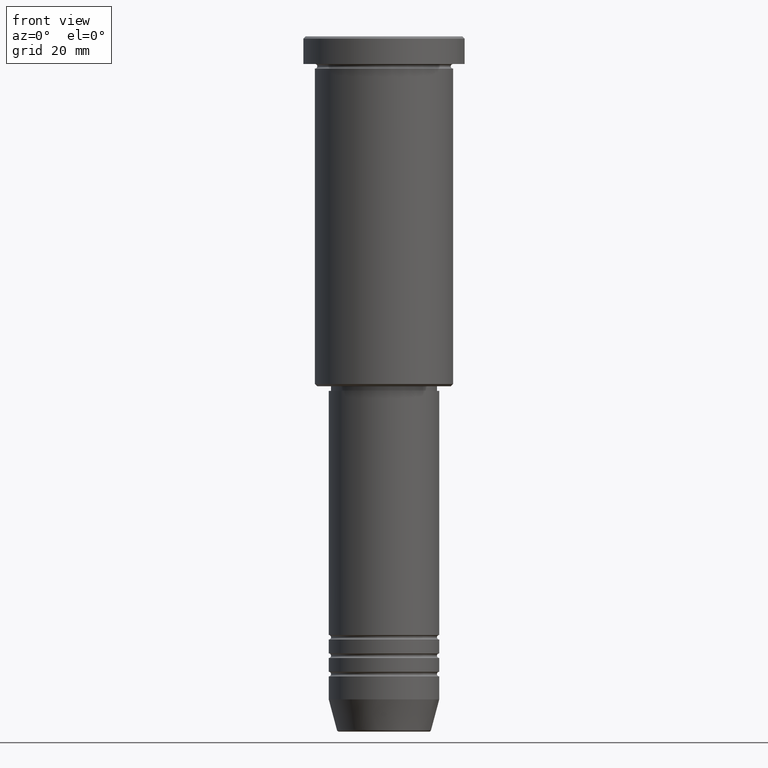
[diagram: clean part render]
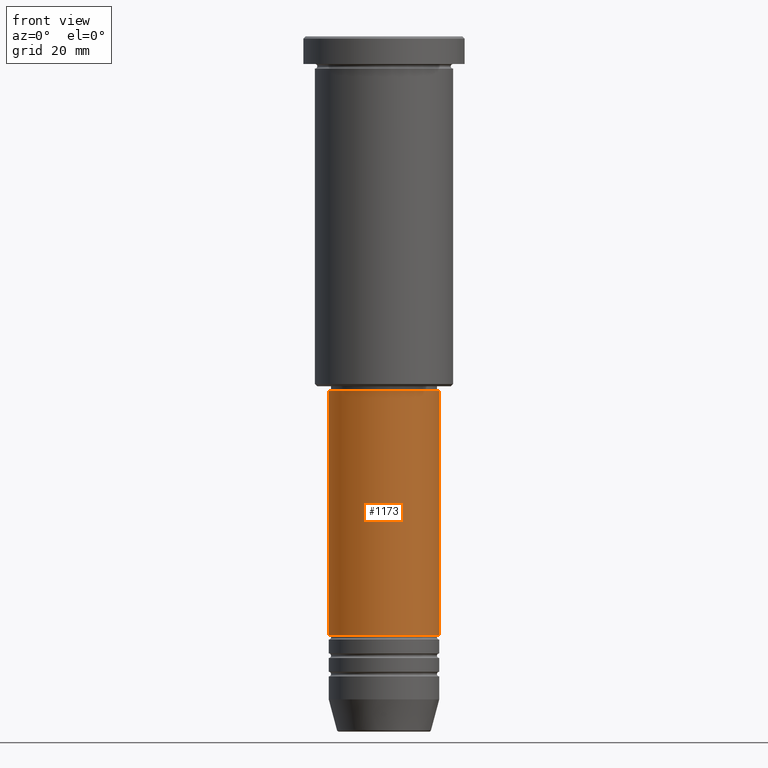
[diagram: same view with one face highlighted and labeled with its STEP entity id]
A machine part, front view. The second image highlights one B-rep face of the part: STEP entity #1173.
In plain terms, the highlighted cylindrical surface (partial cylindrical patch) has radius 12 mm, axis along (-0, -0, 1).
Its self-contained STEP definition (entity closure, byte-faithful):
#18 = FACE_OUTER_BOUND ( 'NONE', #1149, .T. ) ;
#121 = LINE ( 'NONE', #464, #530 ) ;
#124 = DIRECTION ( 'NONE',  ( 1.000000000000000000, 0.000000000000000000, 0.000000000000000000 ) ) ;
#134 = AXIS2_PLACEMENT_3D ( 'NONE', #1017, #465, #849 ) ;
#321 = CARTESIAN_POINT ( 'NONE',  ( 12.00000000000000000, 0.000000000000000000, -129.9999999999998863 ) ) ;
#360 = AXIS2_PLACEMENT_3D ( 'NONE', #845, #382, #124 ) ;
#368 = CARTESIAN_POINT ( 'NONE',  ( -12.00000000000000000, 1.469576158976823947E-15, -129.9999999999998863 ) ) ;
#382 = DIRECTION ( 'NONE',  ( -0.000000000000000000, -0.000000000000000000, 1.000000000000000000 ) ) ;
#390 = CARTESIAN_POINT ( 'NONE',  ( 0.000000000000000000, 0.000000000000000000, -77.00000000000001421 ) ) ;
#392 = EDGE_CURVE ( 'NONE', #468, #1028, #426, .T. ) ;
#426 = CIRCLE ( 'NONE', #490, 12.00000000000000000 ) ;
#464 = CARTESIAN_POINT ( 'NONE',  ( -12.00000000000000000, 1.469576158976823947E-15, 0.000000000000000000 ) ) ;
#465 = DIRECTION ( 'NONE',  ( -0.000000000000000000, -0.000000000000000000, 1.000000000000000000 ) ) ;
#468 = VERTEX_POINT ( 'NONE', #1058 ) ;
#472 = CYLINDRICAL_SURFACE ( 'NONE', #360, 12.00000000000000000 ) ;
#474 = VERTEX_POINT ( 'NONE', #321 ) ;
#490 = AXIS2_PLACEMENT_3D ( 'NONE', #390, #1055, #1036 ) ;
#530 = VECTOR ( 'NONE', #1035, 1000.000000000000000 ) ;
#611 = EDGE_CURVE ( 'NONE', #732, #468, #121, .T. ) ;
#647 = LINE ( 'NONE', #831, #978 ) ;
#669 = CARTESIAN_POINT ( 'NONE',  ( 12.00000000000000000, 0.000000000000000000, -77.00000000000001421 ) ) ;
#732 = VERTEX_POINT ( 'NONE', #368 ) ;
#831 = CARTESIAN_POINT ( 'NONE',  ( 12.00000000000000000, 0.000000000000000000, 0.000000000000000000 ) ) ;
#833 = ORIENTED_EDGE ( 'NONE', *, *, #392, .F. ) ;
#839 = EDGE_CURVE ( 'NONE', #732, #474, #997, .T. ) ;
#844 = DIRECTION ( 'NONE',  ( -0.000000000000000000, -0.000000000000000000, 1.000000000000000000 ) ) ;
#845 = CARTESIAN_POINT ( 'NONE',  ( 0.000000000000000000, 0.000000000000000000, 0.000000000000000000 ) ) ;
#849 = DIRECTION ( 'NONE',  ( 1.000000000000000000, 0.000000000000000000, 0.000000000000000000 ) ) ;
#851 = ORIENTED_EDGE ( 'NONE', *, *, #611, .F. ) ;
#978 = VECTOR ( 'NONE', #844, 1000.000000000000000 ) ;
#994 = EDGE_CURVE ( 'NONE', #474, #1028, #647, .T. ) ;
#997 = CIRCLE ( 'NONE', #134, 12.00000000000000000 ) ;
#1017 = CARTESIAN_POINT ( 'NONE',  ( 0.000000000000000000, 0.000000000000000000, -129.9999999999998863 ) ) ;
#1028 = VERTEX_POINT ( 'NONE', #669 ) ;
#1035 = DIRECTION ( 'NONE',  ( -0.000000000000000000, -0.000000000000000000, 1.000000000000000000 ) ) ;
#1036 = DIRECTION ( 'NONE',  ( 1.000000000000000000, 0.000000000000000000, 0.000000000000000000 ) ) ;
#1055 = DIRECTION ( 'NONE',  ( -0.000000000000000000, -0.000000000000000000, 1.000000000000000000 ) ) ;
#1058 = CARTESIAN_POINT ( 'NONE',  ( -12.00000000000000000, 1.469576158976823947E-15, -77.00000000000001421 ) ) ;
#1137 = ORIENTED_EDGE ( 'NONE', *, *, #839, .T. ) ;
#1149 = EDGE_LOOP ( 'NONE', ( #851, #1137, #1165, #833 ) ) ;
#1165 = ORIENTED_EDGE ( 'NONE', *, *, #994, .T. ) ;
#1173 = ADVANCED_FACE ( 'NONE', ( #18 ), #472, .T. ) ;